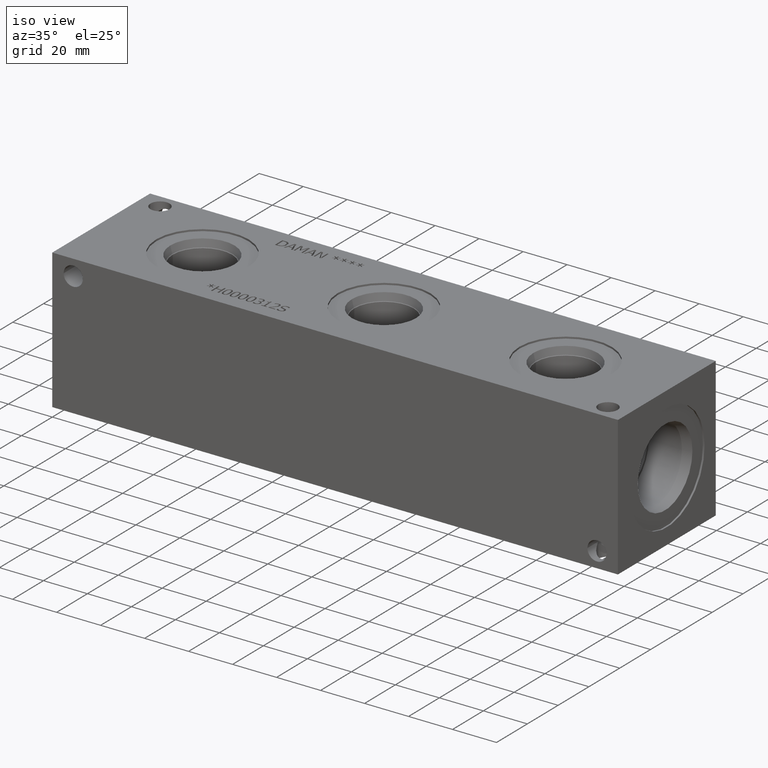
[diagram: clean part render]
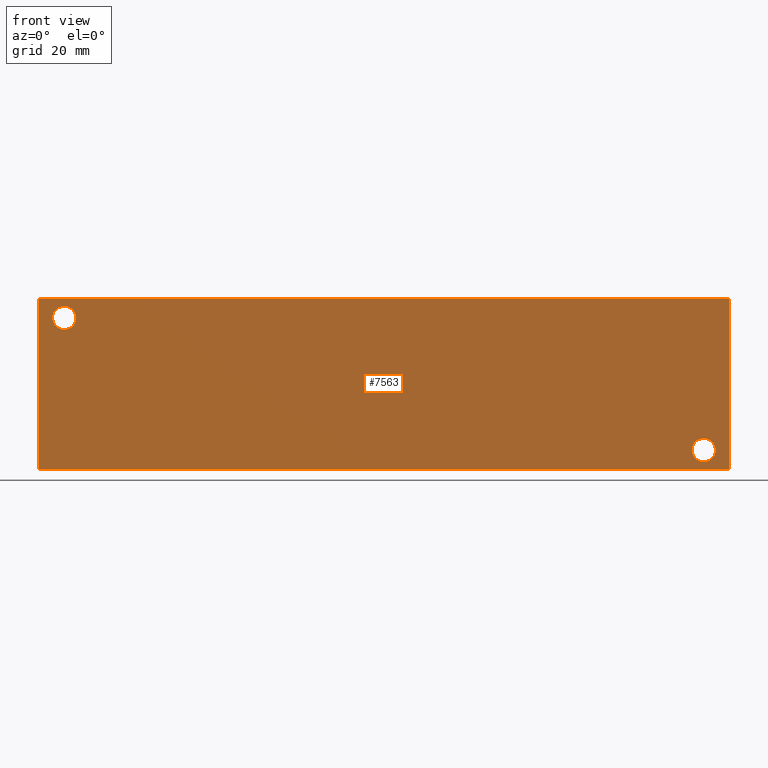
[diagram: tour spotlight — one face highlighted and labeled with its STEP entity id]
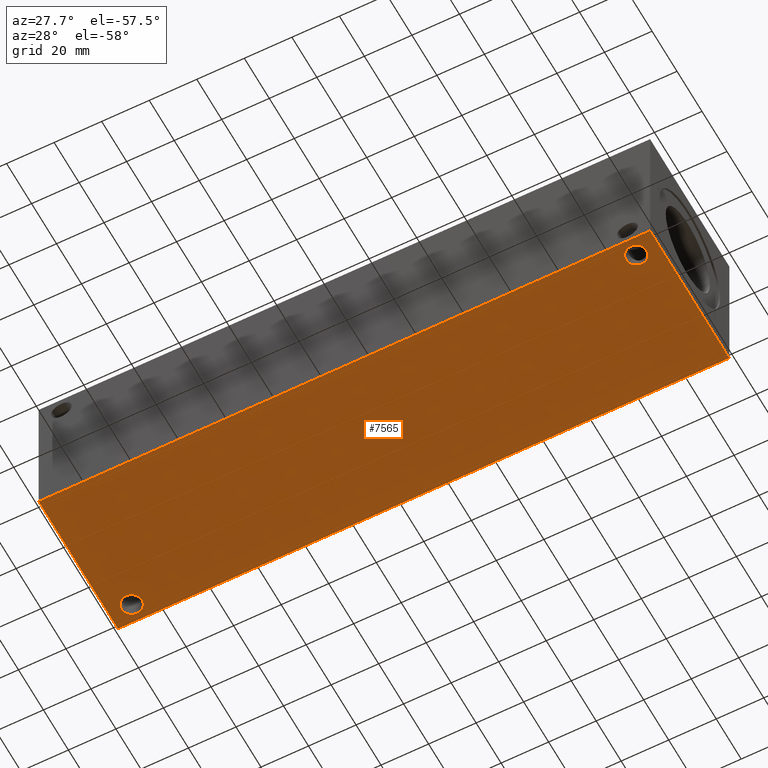
[diagram: tour spotlight — one face highlighted and labeled with its STEP entity id]
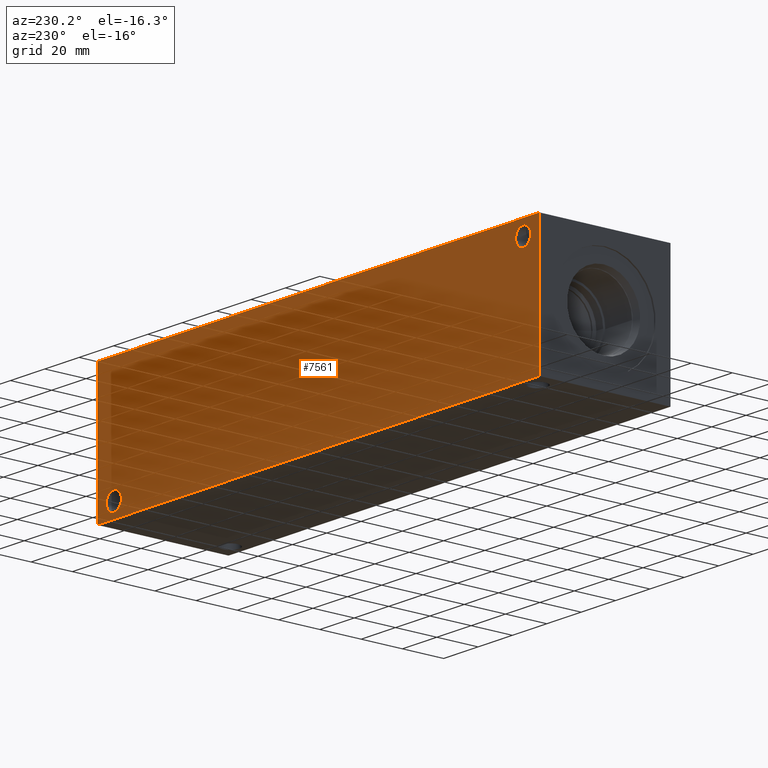
[diagram: tour spotlight — one face highlighted and labeled with its STEP entity id]
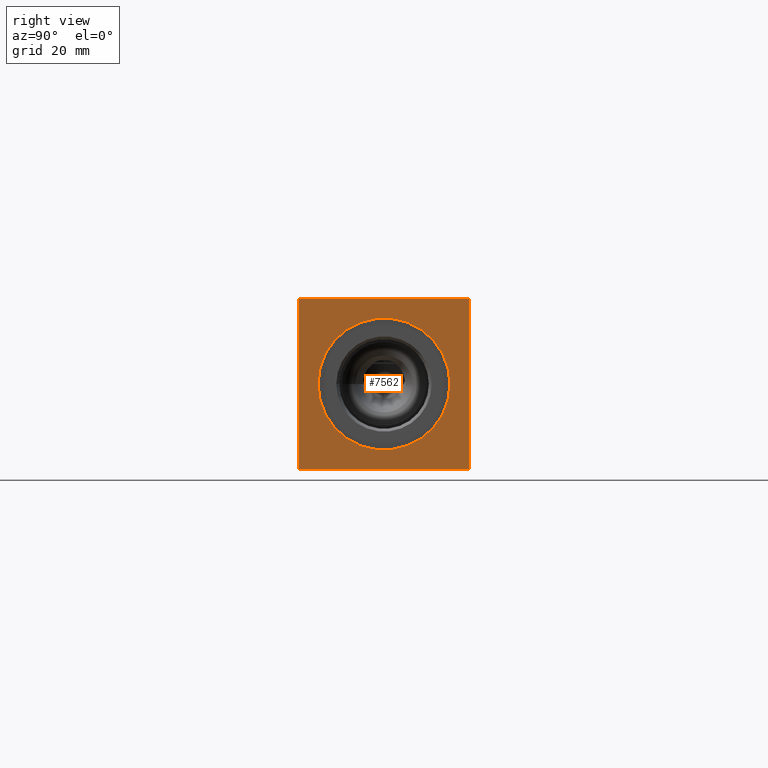
[diagram: tour spotlight — one face highlighted and labeled with its STEP entity id]
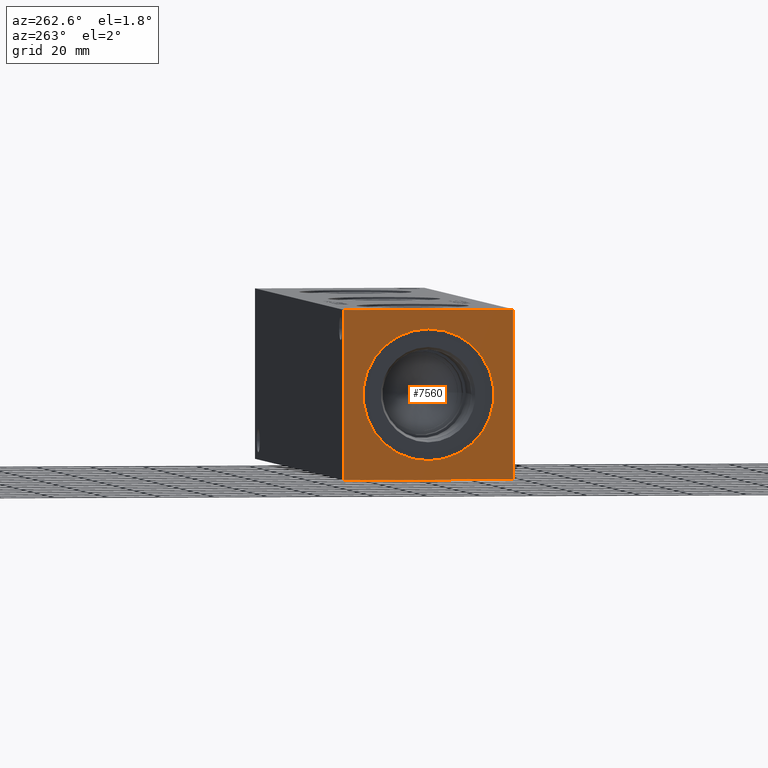
[diagram: tour spotlight — one face highlighted and labeled with its STEP entity id]
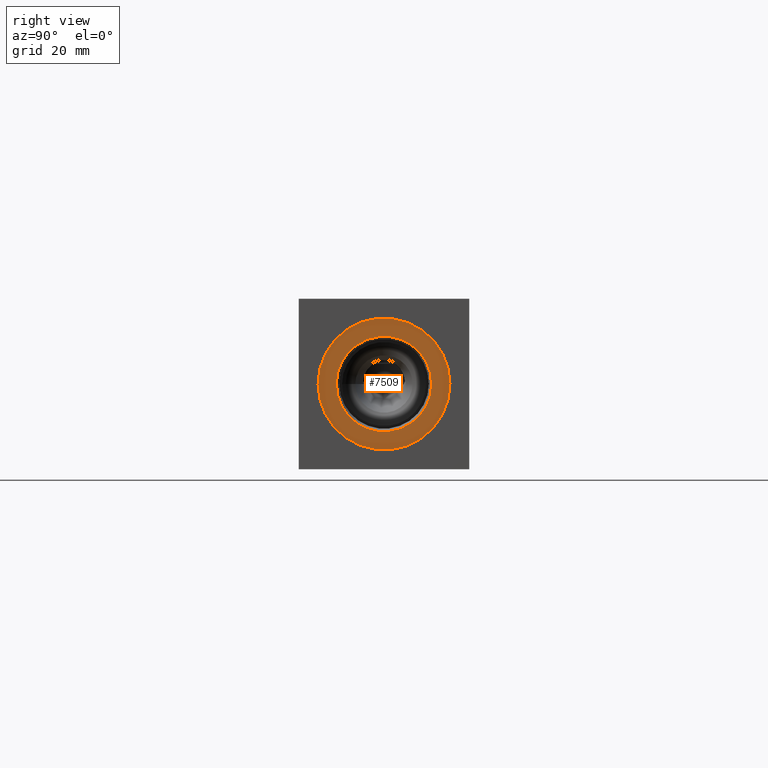
[diagram: tour spotlight — one face highlighted and labeled with its STEP entity id]
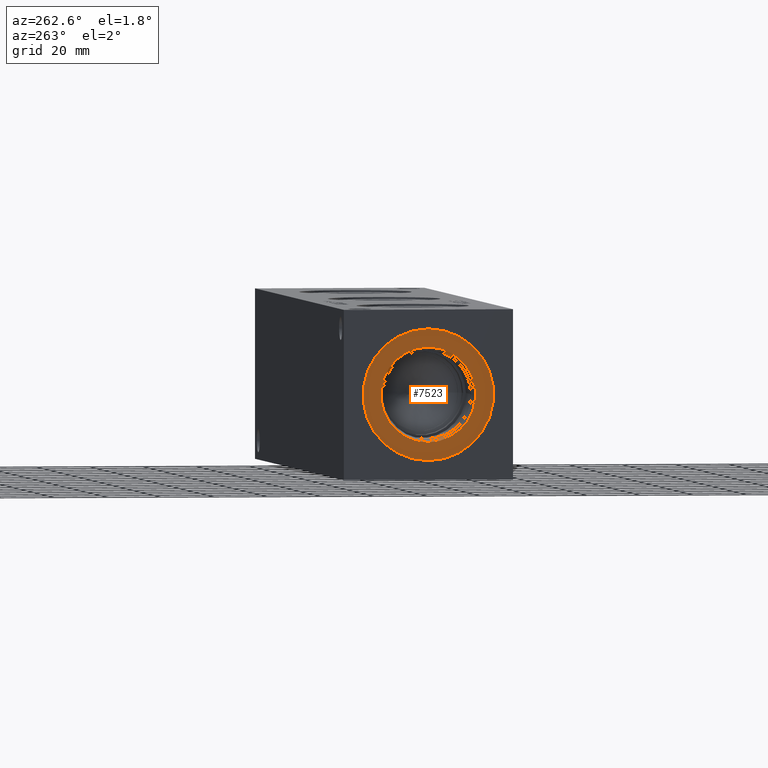
[diagram: tour spotlight — one face highlighted and labeled with its STEP entity id]
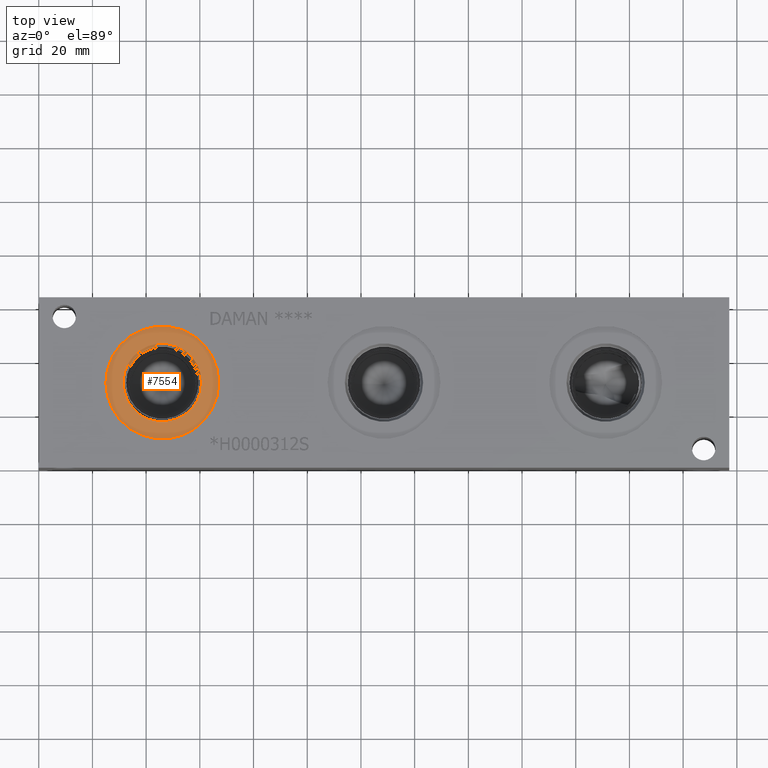
[diagram: tour spotlight — one face highlighted and labeled with its STEP entity id]
A machine part: a face-by-face anatomy tour. The part has 384 B-rep faces; the first image is the clean iso view, then the 8 largest visible faces are spotlighted one at a time (largest first), each with its STEP entity span.

Face 1 — front view, entity #7563. In plain terms, the highlighted planar face has unit normal (0, -1, 0).
Definition (entity closure, byte-faithful):
#90=CIRCLE('',#7798,4.3688);
#91=CIRCLE('',#7799,4.3688);
#93=CIRCLE('',#7808,4.3688);
#94=CIRCLE('',#7809,4.3688);
#236=FACE_BOUND('',#1373,.T.);
#237=FACE_BOUND('',#1374,.T.);
#942=FACE_OUTER_BOUND('',#1372,.T.);
#1372=EDGE_LOOP('',(#6638,#6639,#6640,#6641));
#1373=EDGE_LOOP('',(#6642,#6643));
#1374=EDGE_LOOP('',(#6644,#6645));
#1648=LINE('',#11659,#2361);
#2085=LINE('',#13074,#2798);
#2090=LINE('',#13083,#2803);
#2091=LINE('',#13085,#2804);
#2361=VECTOR('',#8388,10.);
#2798=VECTOR('',#9475,10.);
#2803=VECTOR('',#9484,10.);
#2804=VECTOR('',#9487,10.);
#3111=VERTEX_POINT('',#11657);
#3112=VERTEX_POINT('',#11658);
#3387=VERTEX_POINT('',#12591);
#3388=VERTEX_POINT('',#12592);
#3392=VERTEX_POINT('',#12609);
#3393=VERTEX_POINT('',#12610);
#3505=VERTEX_POINT('',#13072);
#3507=VERTEX_POINT('',#13081);
#3967=EDGE_CURVE('',#3111,#3112,#1648,.T.);
#4374=EDGE_CURVE('',#3387,#3388,#90,.T.);
#4375=EDGE_CURVE('',#3388,#3387,#91,.T.);
#4384=EDGE_CURVE('',#3392,#3393,#93,.T.);
#4385=EDGE_CURVE('',#3393,#3392,#94,.T.);
#4550=EDGE_CURVE('',#3505,#3111,#2085,.T.);
#4555=EDGE_CURVE('',#3507,#3112,#2090,.T.);
#4556=EDGE_CURVE('',#3505,#3507,#2091,.T.);
#6638=ORIENTED_EDGE('',*,*,#4556,.T.);
#6639=ORIENTED_EDGE('',*,*,#4555,.T.);
#6640=ORIENTED_EDGE('',*,*,#3967,.F.);
#6641=ORIENTED_EDGE('',*,*,#4550,.F.);
#6642=ORIENTED_EDGE('',*,*,#4374,.T.);
#6643=ORIENTED_EDGE('',*,*,#4375,.T.);
#6644=ORIENTED_EDGE('',*,*,#4384,.T.);
#6645=ORIENTED_EDGE('',*,*,#4385,.T.);
#6875=PLANE('',#7976);
#7563=ADVANCED_FACE('',(#942,#236,#237),#6875,.T.);
#7798=AXIS2_PLACEMENT_3D('',#12593,#9067,#9068);
#7799=AXIS2_PLACEMENT_3D('',#12594,#9069,#9070);
#7808=AXIS2_PLACEMENT_3D('',#12611,#9090,#9091);
#7809=AXIS2_PLACEMENT_3D('',#12612,#9092,#9093);
#7976=AXIS2_PLACEMENT_3D('',#13084,#9485,#9486);
#8388=DIRECTION('',(1.,0.,0.));
#9067=DIRECTION('center_axis',(0.,1.,0.));
#9068=DIRECTION('ref_axis',(1.,0.,0.));
#9069=DIRECTION('center_axis',(0.,1.,0.));
#9070=DIRECTION('ref_axis',(1.,0.,0.));
#9090=DIRECTION('center_axis',(0.,1.,0.));
#9091=DIRECTION('ref_axis',(1.,0.,0.));
#9092=DIRECTION('center_axis',(0.,1.,0.));
#9093=DIRECTION('ref_axis',(1.,0.,0.));
#9475=DIRECTION('',(0.,0.,1.));
#9484=DIRECTION('',(0.,0.,1.));
#9485=DIRECTION('center_axis',(0.,-1.,0.));
#9486=DIRECTION('ref_axis',(1.,0.,0.));
#9487=DIRECTION('',(1.,0.,0.));
#11657=CARTESIAN_POINT('',(0.,0.,63.5));
#11658=CARTESIAN_POINT('',(257.175,0.,63.5));
#11659=CARTESIAN_POINT('',(0.,0.,63.5));
#12591=CARTESIAN_POINT('',(252.0188,0.,7.1374));
#12592=CARTESIAN_POINT('',(243.2812,0.,7.1374));
#12593=CARTESIAN_POINT('Origin',(247.65,0.,7.1374));
#12594=CARTESIAN_POINT('Origin',(247.65,0.,7.1374));
#12609=CARTESIAN_POINT('',(13.8938,0.,56.3626));
#12610=CARTESIAN_POINT('',(5.1562,0.,56.3626));
#12611=CARTESIAN_POINT('Origin',(9.525,0.,56.3626));
#12612=CARTESIAN_POINT('Origin',(9.525,0.,56.3626));
#13072=CARTESIAN_POINT('',(0.,0.,0.));
#13074=CARTESIAN_POINT('',(0.,0.,0.));
#13081=CARTESIAN_POINT('',(257.175,0.,0.));
#13083=CARTESIAN_POINT('',(257.175,0.,0.));
#13084=CARTESIAN_POINT('Origin',(0.,0.,0.));
#13085=CARTESIAN_POINT('',(0.,0.,0.));

Face 2 — auxiliary view, entity #7565. In plain terms, the highlighted planar face has unit normal (0, 0, 1).
Definition (entity closure, byte-faithful):
#188=CIRCLE('',#7970,4.3688);
#189=CIRCLE('',#7972,4.3688);
#238=FACE_BOUND('',#1377,.T.);
#239=FACE_BOUND('',#1378,.T.);
#944=FACE_OUTER_BOUND('',#1376,.T.);
#1376=EDGE_LOOP('',(#6649,#6650,#6651,#6652));
#1377=EDGE_LOOP('',(#6653));
#1378=EDGE_LOOP('',(#6654));
#2084=LINE('',#13073,#2797);
#2087=LINE('',#13078,#2800);
#2089=LINE('',#13082,#2802);
#2091=LINE('',#13085,#2804);
#2797=VECTOR('',#9474,10.);
#2800=VECTOR('',#9479,10.);
#2802=VECTOR('',#9483,10.);
#2804=VECTOR('',#9487,10.);
#3502=VERTEX_POINT('',#13063);
#3503=VERTEX_POINT('',#13067);
#3504=VERTEX_POINT('',#13071);
#3505=VERTEX_POINT('',#13072);
#3506=VERTEX_POINT('',#13077);
#3507=VERTEX_POINT('',#13081);
#4546=EDGE_CURVE('',#3502,#3502,#188,.T.);
#4548=EDGE_CURVE('',#3503,#3503,#189,.T.);
#4549=EDGE_CURVE('',#3504,#3505,#2084,.T.);
#4552=EDGE_CURVE('',#3506,#3504,#2087,.T.);
#4554=EDGE_CURVE('',#3507,#3506,#2089,.T.);
#4556=EDGE_CURVE('',#3505,#3507,#2091,.T.);
#6649=ORIENTED_EDGE('',*,*,#4556,.F.);
#6650=ORIENTED_EDGE('',*,*,#4549,.F.);
#6651=ORIENTED_EDGE('',*,*,#4552,.F.);
#6652=ORIENTED_EDGE('',*,*,#4554,.F.);
#6653=ORIENTED_EDGE('',*,*,#4546,.T.);
#6654=ORIENTED_EDGE('',*,*,#4548,.T.);
#6877=PLANE('',#7978);
#7565=ADVANCED_FACE('',(#944,#238,#239),#6877,.F.);
#7970=AXIS2_PLACEMENT_3D('',#13065,#9465,#9466);
#7972=AXIS2_PLACEMENT_3D('',#13069,#9470,#9471);
#7978=AXIS2_PLACEMENT_3D('',#13087,#9490,#9491);
#9465=DIRECTION('center_axis',(0.,0.,1.));
#9466=DIRECTION('ref_axis',(1.,0.,0.));
#9470=DIRECTION('center_axis',(0.,0.,1.));
#9471=DIRECTION('ref_axis',(1.,0.,0.));
#9474=DIRECTION('',(0.,-1.,0.));
#9479=DIRECTION('',(-1.,0.,0.));
#9483=DIRECTION('',(0.,1.,0.));
#9487=DIRECTION('',(1.,0.,0.));
#9490=DIRECTION('center_axis',(0.,0.,1.));
#9491=DIRECTION('ref_axis',(1.,0.,0.));
#13063=CARTESIAN_POINT('',(243.2812,7.1374,0.));
#13065=CARTESIAN_POINT('Origin',(247.65,7.1374,0.));
#13067=CARTESIAN_POINT('',(5.1562,56.3626,0.));
#13069=CARTESIAN_POINT('Origin',(9.525,56.3626,0.));
#13071=CARTESIAN_POINT('',(0.,63.5,0.));
#13072=CARTESIAN_POINT('',(0.,0.,0.));
#13073=CARTESIAN_POINT('',(0.,63.5,0.));
#13077=CARTESIAN_POINT('',(257.175,63.5,0.));
#13078=CARTESIAN_POINT('',(257.175,63.5,0.));
#13081=CARTESIAN_POINT('',(257.175,0.,0.));
#13082=CARTESIAN_POINT('',(257.175,0.,0.));
#13085=CARTESIAN_POINT('',(0.,0.,0.));
#13087=CARTESIAN_POINT('Origin',(128.5875,31.75,0.));

Face 3 — auxiliary view, entity #7561. In plain terms, the highlighted planar face has unit normal (0, 1, 0).
Definition (entity closure, byte-faithful):
#92=CIRCLE('',#7805,4.3688);
#95=CIRCLE('',#7815,4.3688);
#233=FACE_BOUND('',#1368,.T.);
#234=FACE_BOUND('',#1369,.T.);
#940=FACE_OUTER_BOUND('',#1367,.T.);
#1367=EDGE_LOOP('',(#6626,#6627,#6628,#6629));
#1368=EDGE_LOOP('',(#6630));
#1369=EDGE_LOOP('',(#6631));
#1650=LINE('',#11663,#2363);
#2086=LINE('',#13075,#2799);
#2087=LINE('',#13078,#2800);
#2088=LINE('',#13079,#2801);
#2363=VECTOR('',#8390,10.);
#2799=VECTOR('',#9476,10.);
#2800=VECTOR('',#9479,10.);
#2801=VECTOR('',#9480,10.);
#3113=VERTEX_POINT('',#11660);
#3114=VERTEX_POINT('',#11662);
#3391=VERTEX_POINT('',#12603);
#3396=VERTEX_POINT('',#12621);
#3504=VERTEX_POINT('',#13071);
#3506=VERTEX_POINT('',#13077);
#3969=EDGE_CURVE('',#3113,#3114,#1650,.T.);
#4382=EDGE_CURVE('',#3391,#3391,#92,.T.);
#4392=EDGE_CURVE('',#3396,#3396,#95,.T.);
#4551=EDGE_CURVE('',#3504,#3114,#2086,.T.);
#4552=EDGE_CURVE('',#3506,#3504,#2087,.T.);
#4553=EDGE_CURVE('',#3506,#3113,#2088,.T.);
#6626=ORIENTED_EDGE('',*,*,#4552,.T.);
#6627=ORIENTED_EDGE('',*,*,#4551,.T.);
#6628=ORIENTED_EDGE('',*,*,#3969,.F.);
#6629=ORIENTED_EDGE('',*,*,#4553,.F.);
#6630=ORIENTED_EDGE('',*,*,#4382,.T.);
#6631=ORIENTED_EDGE('',*,*,#4392,.T.);
#6873=PLANE('',#7974);
#7561=ADVANCED_FACE('',(#940,#233,#234),#6873,.T.);
#7805=AXIS2_PLACEMENT_3D('',#12605,#9083,#9084);
#7815=AXIS2_PLACEMENT_3D('',#12623,#9106,#9107);
#7974=AXIS2_PLACEMENT_3D('',#13076,#9477,#9478);
#8390=DIRECTION('',(-1.,0.,0.));
#9083=DIRECTION('center_axis',(0.,-1.,0.));
#9084=DIRECTION('ref_axis',(1.,0.,0.));
#9106=DIRECTION('center_axis',(0.,-1.,0.));
#9107=DIRECTION('ref_axis',(1.,0.,0.));
#9476=DIRECTION('',(0.,0.,1.));
#9477=DIRECTION('center_axis',(0.,1.,0.));
#9478=DIRECTION('ref_axis',(-1.,0.,0.));
#9479=DIRECTION('',(-1.,0.,0.));
#9480=DIRECTION('',(0.,0.,1.));
#11660=CARTESIAN_POINT('',(257.175,63.5,63.5));
#11662=CARTESIAN_POINT('',(0.,63.5,63.5));
#11663=CARTESIAN_POINT('',(257.175,63.5,63.5));
#12603=CARTESIAN_POINT('',(243.2812,63.5,7.1374));
#12605=CARTESIAN_POINT('Origin',(247.65,63.5,7.1374));
#12621=CARTESIAN_POINT('',(5.1562,63.5,56.3626));
#12623=CARTESIAN_POINT('Origin',(9.525,63.5,56.3626));
#13071=CARTESIAN_POINT('',(0.,63.5,0.));
#13075=CARTESIAN_POINT('',(0.,63.5,0.));
#13076=CARTESIAN_POINT('Origin',(257.175,63.5,0.));
#13077=CARTESIAN_POINT('',(257.175,63.5,0.));
#13078=CARTESIAN_POINT('',(257.175,63.5,0.));
#13079=CARTESIAN_POINT('',(257.175,63.5,0.));

Face 4 — right view, entity #7562. In plain terms, the highlighted planar face has unit normal (1, 0, 0).
Definition (entity closure, byte-faithful):
#115=CIRCLE('',#7849,24.5618);
#116=CIRCLE('',#7850,24.5618);
#235=FACE_BOUND('',#1371,.T.);
#941=FACE_OUTER_BOUND('',#1370,.T.);
#1370=EDGE_LOOP('',(#6632,#6633,#6634,#6635));
#1371=EDGE_LOOP('',(#6636,#6637));
#1649=LINE('',#11661,#2362);
#2088=LINE('',#13079,#2801);
#2089=LINE('',#13082,#2802);
#2090=LINE('',#13083,#2803);
#2362=VECTOR('',#8389,10.);
#2801=VECTOR('',#9480,10.);
#2802=VECTOR('',#9483,10.);
#2803=VECTOR('',#9484,10.);
#3112=VERTEX_POINT('',#11658);
#3113=VERTEX_POINT('',#11660);
#3429=VERTEX_POINT('',#12833);
#3430=VERTEX_POINT('',#12834);
#3506=VERTEX_POINT('',#13077);
#3507=VERTEX_POINT('',#13081);
#3968=EDGE_CURVE('',#3112,#3113,#1649,.T.);
#4436=EDGE_CURVE('',#3429,#3430,#115,.T.);
#4437=EDGE_CURVE('',#3430,#3429,#116,.T.);
#4553=EDGE_CURVE('',#3506,#3113,#2088,.T.);
#4554=EDGE_CURVE('',#3507,#3506,#2089,.T.);
#4555=EDGE_CURVE('',#3507,#3112,#2090,.T.);
#6632=ORIENTED_EDGE('',*,*,#4554,.T.);
#6633=ORIENTED_EDGE('',*,*,#4553,.T.);
#6634=ORIENTED_EDGE('',*,*,#3968,.F.);
#6635=ORIENTED_EDGE('',*,*,#4555,.F.);
#6636=ORIENTED_EDGE('',*,*,#4436,.T.);
#6637=ORIENTED_EDGE('',*,*,#4437,.T.);
#6874=PLANE('',#7975);
#7562=ADVANCED_FACE('',(#941,#235),#6874,.T.);
#7849=AXIS2_PLACEMENT_3D('',#12835,#9186,#9187);
#7850=AXIS2_PLACEMENT_3D('',#12836,#9188,#9189);
#7975=AXIS2_PLACEMENT_3D('',#13080,#9481,#9482);
#8389=DIRECTION('',(0.,1.,0.));
#9186=DIRECTION('center_axis',(-1.,0.,0.));
#9187=DIRECTION('ref_axis',(0.,1.,0.));
#9188=DIRECTION('center_axis',(-1.,0.,0.));
#9189=DIRECTION('ref_axis',(0.,1.,0.));
#9480=DIRECTION('',(0.,0.,1.));
#9481=DIRECTION('center_axis',(1.,0.,0.));
#9482=DIRECTION('ref_axis',(0.,1.,0.));
#9483=DIRECTION('',(0.,1.,0.));
#9484=DIRECTION('',(0.,0.,1.));
#11658=CARTESIAN_POINT('',(257.175,0.,63.5));
#11660=CARTESIAN_POINT('',(257.175,63.5,63.5));
#11661=CARTESIAN_POINT('',(257.175,0.,63.5));
#12833=CARTESIAN_POINT('',(257.175,56.3118,31.75));
#12834=CARTESIAN_POINT('',(257.175,7.1882,31.75));
#12835=CARTESIAN_POINT('Origin',(257.175,31.75,31.75));
#12836=CARTESIAN_POINT('Origin',(257.175,31.75,31.75));
#13077=CARTESIAN_POINT('',(257.175,63.5,0.));
#13079=CARTESIAN_POINT('',(257.175,63.5,0.));
#13080=CARTESIAN_POINT('Origin',(257.175,0.,0.));
#13081=CARTESIAN_POINT('',(257.175,0.,0.));
#13082=CARTESIAN_POINT('',(257.175,0.,0.));
#13083=CARTESIAN_POINT('',(257.175,0.,0.));

Face 5 — auxiliary view, entity #7560. In plain terms, the highlighted planar face has unit normal (-1, 0, 0).
Definition (entity closure, byte-faithful):
#132=CIRCLE('',#7878,24.5618);
#133=CIRCLE('',#7879,24.5618);
#232=FACE_BOUND('',#1366,.T.);
#939=FACE_OUTER_BOUND('',#1365,.T.);
#1365=EDGE_LOOP('',(#6620,#6621,#6622,#6623));
#1366=EDGE_LOOP('',(#6624,#6625));
#1651=LINE('',#11664,#2364);
#2084=LINE('',#13073,#2797);
#2085=LINE('',#13074,#2798);
#2086=LINE('',#13075,#2799);
#2364=VECTOR('',#8391,10.);
#2797=VECTOR('',#9474,10.);
#2798=VECTOR('',#9475,10.);
#2799=VECTOR('',#9476,10.);
#3111=VERTEX_POINT('',#11657);
#3114=VERTEX_POINT('',#11662);
#3445=VERTEX_POINT('',#12887);
#3446=VERTEX_POINT('',#12888);
#3504=VERTEX_POINT('',#13071);
#3505=VERTEX_POINT('',#13072);
#3970=EDGE_CURVE('',#3114,#3111,#1651,.T.);
#4462=EDGE_CURVE('',#3445,#3446,#132,.T.);
#4463=EDGE_CURVE('',#3446,#3445,#133,.T.);
#4549=EDGE_CURVE('',#3504,#3505,#2084,.T.);
#4550=EDGE_CURVE('',#3505,#3111,#2085,.T.);
#4551=EDGE_CURVE('',#3504,#3114,#2086,.T.);
#6620=ORIENTED_EDGE('',*,*,#4549,.T.);
#6621=ORIENTED_EDGE('',*,*,#4550,.T.);
#6622=ORIENTED_EDGE('',*,*,#3970,.F.);
#6623=ORIENTED_EDGE('',*,*,#4551,.F.);
#6624=ORIENTED_EDGE('',*,*,#4462,.T.);
#6625=ORIENTED_EDGE('',*,*,#4463,.T.);
#6872=PLANE('',#7973);
#7560=ADVANCED_FACE('',(#939,#232),#6872,.T.);
#7878=AXIS2_PLACEMENT_3D('',#12889,#9253,#9254);
#7879=AXIS2_PLACEMENT_3D('',#12890,#9255,#9256);
#7973=AXIS2_PLACEMENT_3D('',#13070,#9472,#9473);
#8391=DIRECTION('',(0.,-1.,0.));
#9253=DIRECTION('center_axis',(1.,0.,0.));
#9254=DIRECTION('ref_axis',(0.,0.,1.));
#9255=DIRECTION('center_axis',(1.,0.,0.));
#9256=DIRECTION('ref_axis',(0.,0.,1.));
#9472=DIRECTION('center_axis',(-1.,0.,0.));
#9473=DIRECTION('ref_axis',(0.,-1.,0.));
#9474=DIRECTION('',(0.,-1.,0.));
#9475=DIRECTION('',(0.,0.,1.));
#9476=DIRECTION('',(0.,0.,1.));
#11657=CARTESIAN_POINT('',(0.,0.,63.5));
#11662=CARTESIAN_POINT('',(0.,63.5,63.5));
#11664=CARTESIAN_POINT('',(0.,63.5,63.5));
#12887=CARTESIAN_POINT('',(0.,31.75,56.3118));
#12888=CARTESIAN_POINT('',(0.,31.75,7.1882));
#12889=CARTESIAN_POINT('Origin',(0.,31.75,31.75));
#12890=CARTESIAN_POINT('Origin',(0.,31.75,31.75));
#13070=CARTESIAN_POINT('Origin',(0.,63.5,0.));
#13071=CARTESIAN_POINT('',(0.,63.5,0.));
#13072=CARTESIAN_POINT('',(0.,0.,0.));
#13073=CARTESIAN_POINT('',(0.,63.5,0.));
#13074=CARTESIAN_POINT('',(0.,0.,0.));
#13075=CARTESIAN_POINT('',(0.,63.5,0.));

Face 6 — right view, entity #7509. In plain terms, the highlighted planar face has unit normal (1, 0, 0).
Definition (entity closure, byte-faithful):
#112=CIRCLE('',#7845,24.5618);
#113=CIRCLE('',#7846,24.5618);
#114=CIRCLE('',#7847,17.7546);
#223=FACE_BOUND('',#1306,.T.);
#888=FACE_OUTER_BOUND('',#1305,.T.);
#1305=EDGE_LOOP('',(#6370,#6371));
#1306=EDGE_LOOP('',(#6372));
#3426=VERTEX_POINT('',#12826);
#3427=VERTEX_POINT('',#12827);
#3428=VERTEX_POINT('',#12830);
#4433=EDGE_CURVE('',#3426,#3427,#112,.T.);
#4434=EDGE_CURVE('',#3427,#3426,#113,.T.);
#4435=EDGE_CURVE('',#3428,#3428,#114,.T.);
#6370=ORIENTED_EDGE('',*,*,#4433,.T.);
#6371=ORIENTED_EDGE('',*,*,#4434,.T.);
#6372=ORIENTED_EDGE('',*,*,#4435,.F.);
#6863=PLANE('',#7844);
#7509=ADVANCED_FACE('',(#888,#223),#6863,.T.);
#7844=AXIS2_PLACEMENT_3D('',#12825,#9176,#9177);
#7845=AXIS2_PLACEMENT_3D('',#12828,#9178,#9179);
#7846=AXIS2_PLACEMENT_3D('',#12829,#9180,#9181);
#7847=AXIS2_PLACEMENT_3D('',#12831,#9182,#9183);
#9176=DIRECTION('center_axis',(1.,0.,0.));
#9177=DIRECTION('ref_axis',(0.,1.,0.));
#9178=DIRECTION('center_axis',(1.,0.,0.));
#9179=DIRECTION('ref_axis',(0.,1.,0.));
#9180=DIRECTION('center_axis',(1.,0.,0.));
#9181=DIRECTION('ref_axis',(0.,1.,0.));
#9182=DIRECTION('center_axis',(1.,0.,0.));
#9183=DIRECTION('ref_axis',(0.,1.,0.));
#12825=CARTESIAN_POINT('Origin',(256.3876,31.75,31.75));
#12826=CARTESIAN_POINT('',(256.3876,56.3118,31.75));
#12827=CARTESIAN_POINT('',(256.3876,7.1882,31.75));
#12828=CARTESIAN_POINT('Origin',(256.3876,31.75,31.75));
#12829=CARTESIAN_POINT('Origin',(256.3876,31.75,31.75));
#12830=CARTESIAN_POINT('',(256.3876,13.9954,31.75));
#12831=CARTESIAN_POINT('Origin',(256.3876,31.75,31.75));

Face 7 — auxiliary view, entity #7523. In plain terms, the highlighted planar face has unit normal (1, 0, 0).
Definition (entity closure, byte-faithful):
#134=CIRCLE('',#7880,24.5618);
#135=CIRCLE('',#7881,24.5618);
#136=CIRCLE('',#7883,17.7546);
#137=CIRCLE('',#7884,17.7546);
#225=FACE_BOUND('',#1322,.T.);
#902=FACE_OUTER_BOUND('',#1321,.T.);
#1321=EDGE_LOOP('',(#6437,#6438));
#1322=EDGE_LOOP('',(#6439,#6440));
#3447=VERTEX_POINT('',#12891);
#3448=VERTEX_POINT('',#12893);
#3449=VERTEX_POINT('',#12897);
#3450=VERTEX_POINT('',#12898);
#4465=EDGE_CURVE('',#3447,#3448,#134,.T.);
#4466=EDGE_CURVE('',#3448,#3447,#135,.T.);
#4467=EDGE_CURVE('',#3449,#3450,#136,.T.);
#4468=EDGE_CURVE('',#3450,#3449,#137,.T.);
#6437=ORIENTED_EDGE('',*,*,#4466,.F.);
#6438=ORIENTED_EDGE('',*,*,#4465,.F.);
#6439=ORIENTED_EDGE('',*,*,#4467,.T.);
#6440=ORIENTED_EDGE('',*,*,#4468,.T.);
#6865=PLANE('',#7882);
#7523=ADVANCED_FACE('',(#902,#225),#6865,.F.);
#7880=AXIS2_PLACEMENT_3D('',#12894,#9258,#9259);
#7881=AXIS2_PLACEMENT_3D('',#12895,#9260,#9261);
#7882=AXIS2_PLACEMENT_3D('',#12896,#9262,#9263);
#7883=AXIS2_PLACEMENT_3D('',#12899,#9264,#9265);
#7884=AXIS2_PLACEMENT_3D('',#12900,#9266,#9267);
#9258=DIRECTION('center_axis',(1.,0.,0.));
#9259=DIRECTION('ref_axis',(0.,0.,-1.));
#9260=DIRECTION('center_axis',(1.,0.,0.));
#9261=DIRECTION('ref_axis',(0.,0.,-1.));
#9262=DIRECTION('center_axis',(1.,0.,0.));
#9263=DIRECTION('ref_axis',(0.,0.,-1.));
#9264=DIRECTION('center_axis',(1.,0.,0.));
#9265=DIRECTION('ref_axis',(0.,0.,-1.));
#9266=DIRECTION('center_axis',(1.,0.,0.));
#9267=DIRECTION('ref_axis',(0.,0.,-1.));
#12891=CARTESIAN_POINT('',(0.7874,31.75,7.1882));
#12893=CARTESIAN_POINT('',(0.7874,31.75,56.3118));
#12894=CARTESIAN_POINT('Origin',(0.7874,31.75,31.75));
#12895=CARTESIAN_POINT('Origin',(0.7874,31.75,31.75));
#12896=CARTESIAN_POINT('Origin',(0.7874,31.75,49.5046));
#12897=CARTESIAN_POINT('',(0.7874,31.75,49.5046));
#12898=CARTESIAN_POINT('',(0.787400000000001,31.75,13.9954));
#12899=CARTESIAN_POINT('Origin',(0.7874,31.75,31.75));
#12900=CARTESIAN_POINT('Origin',(0.7874,31.75,31.75));

Face 8 — top view, entity #7554. In plain terms, the highlighted planar face has unit normal (0, 0, -1).
Definition (entity closure, byte-faithful):
#180=CIRCLE('',#7957,21.0185);
#181=CIRCLE('',#7958,21.0185);
#182=CIRCLE('',#7960,14.5923);
#183=CIRCLE('',#7961,14.5923);
#231=FACE_BOUND('',#1359,.T.);
#933=FACE_OUTER_BOUND('',#1358,.T.);
#1358=EDGE_LOOP('',(#6589,#6590));
#1359=EDGE_LOOP('',(#6591,#6592));
#3494=VERTEX_POINT('',#13038);
#3495=VERTEX_POINT('',#13040);
#3496=VERTEX_POINT('',#13044);
#3497=VERTEX_POINT('',#13045);
#4534=EDGE_CURVE('',#3494,#3495,#180,.T.);
#4535=EDGE_CURVE('',#3495,#3494,#181,.T.);
#4536=EDGE_CURVE('',#3496,#3497,#182,.T.);
#4537=EDGE_CURVE('',#3497,#3496,#183,.T.);
#6589=ORIENTED_EDGE('',*,*,#4535,.F.);
#6590=ORIENTED_EDGE('',*,*,#4534,.F.);
#6591=ORIENTED_EDGE('',*,*,#4536,.T.);
#6592=ORIENTED_EDGE('',*,*,#4537,.T.);
#6871=PLANE('',#7959);
#7554=ADVANCED_FACE('',(#933,#231),#6871,.F.);
#7957=AXIS2_PLACEMENT_3D('',#13041,#9435,#9436);
#7958=AXIS2_PLACEMENT_3D('',#13042,#9437,#9438);
#7959=AXIS2_PLACEMENT_3D('',#13043,#9439,#9440);
#7960=AXIS2_PLACEMENT_3D('',#13046,#9441,#9442);
#7961=AXIS2_PLACEMENT_3D('',#13047,#9443,#9444);
#9435=DIRECTION('center_axis',(0.,0.,-1.));
#9436=DIRECTION('ref_axis',(1.,0.,0.));
#9437=DIRECTION('center_axis',(0.,0.,-1.));
#9438=DIRECTION('ref_axis',(1.,0.,0.));
#9439=DIRECTION('center_axis',(0.,0.,-1.));
#9440=DIRECTION('ref_axis',(-1.,0.,0.));
#9441=DIRECTION('center_axis',(0.,0.,-1.));
#9442=DIRECTION('ref_axis',(1.,0.,0.));
#9443=DIRECTION('center_axis',(0.,0.,-1.));
#9444=DIRECTION('ref_axis',(1.,0.,0.));
#13038=CARTESIAN_POINT('',(25.0063,31.75,62.7126));
#13040=CARTESIAN_POINT('',(67.0433,31.75,62.7126));
#13041=CARTESIAN_POINT('Origin',(46.0248,31.75,62.7126));
#13042=CARTESIAN_POINT('Origin',(46.0248,31.75,62.7126));
#13043=CARTESIAN_POINT('Origin',(60.6171,31.75,62.7126));
#13044=CARTESIAN_POINT('',(60.6171,31.75,62.7126));
#13045=CARTESIAN_POINT('',(31.4325,31.75,62.7126));
#13046=CARTESIAN_POINT('Origin',(46.0248,31.75,62.7126));
#13047=CARTESIAN_POINT('Origin',(46.0248,31.75,62.7126));